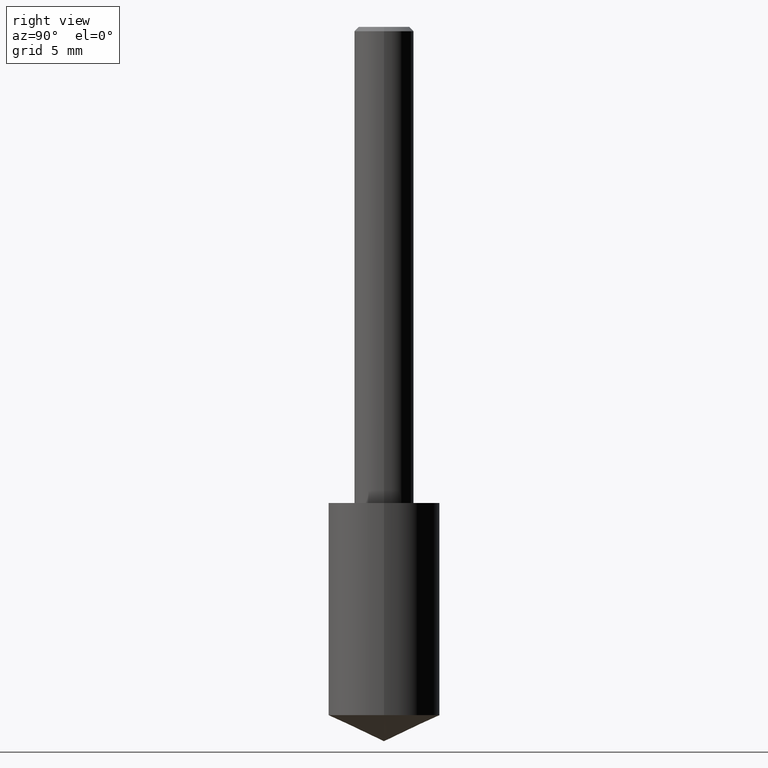
[diagram: clean part render]
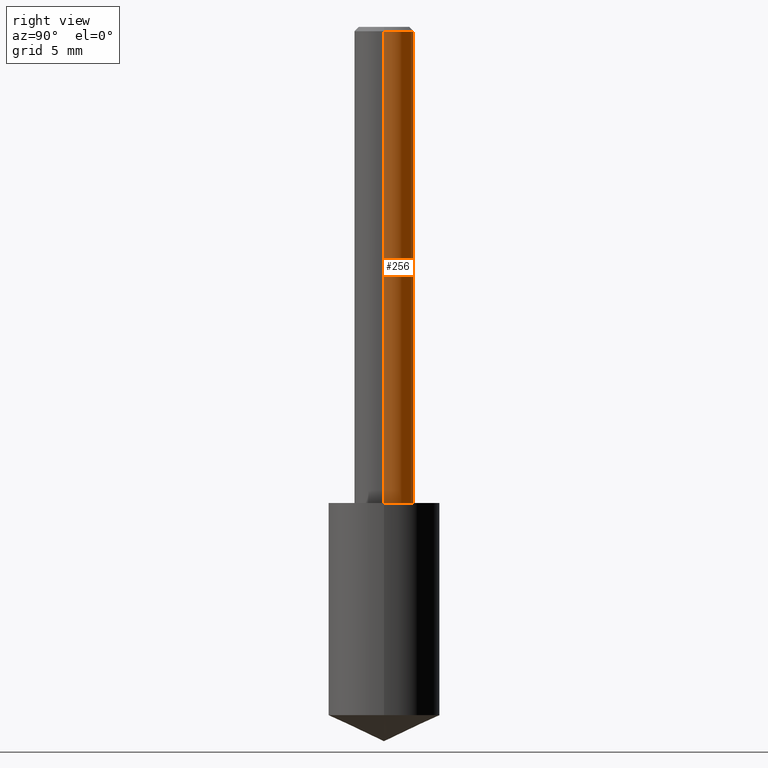
[diagram: same view with one face highlighted and labeled with its STEP entity id]
A machine part, right view. The second image highlights one B-rep face of the part: STEP entity #256.
In plain terms, the highlighted cylindrical surface (edge-blend (fillet) strip) has radius 1.5875 mm, axis along (-0, 0, 1).
Its self-contained STEP definition (entity closure, byte-faithful):
#6 = ORIENTED_EDGE ( 'NONE', *, *, #158, .T. ) ;
#11 = EDGE_CURVE ( 'NONE', #120, #41, #193, .T. ) ;
#41 = VERTEX_POINT ( 'NONE', #167 ) ;
#48 = LINE ( 'NONE', #134, #233 ) ;
#67 = LINE ( 'NONE', #77, #230 ) ;
#71 = DIRECTION ( 'NONE',  ( -2.445468806185136597E-29, 3.491481338843145583E-15, 1.000000000000000000 ) ) ;
#77 = CARTESIAN_POINT ( 'NONE',  ( -0.06250000000000006939, 4.440892098500631092E-16, -3.074334431409319267E-30 ) ) ;
#87 = CARTESIAN_POINT ( 'NONE',  ( 0.06250000000000012490, -3.927916506198539224E-15, -1.000000000000000222 ) ) ;
#95 = CARTESIAN_POINT ( 'NONE',  ( 2.445468806185137438E-29, -3.491481338843146371E-15, -1.000000000000000222 ) ) ;
#115 = DIRECTION ( 'NONE',  ( -2.445468806185136597E-29, 3.491481338843145583E-15, 1.000000000000000000 ) ) ;
#118 = CARTESIAN_POINT ( 'NONE',  ( 0.06250000000000000000, -4.691678049070464390E-16, -0.009375000000000067307 ) ) ;
#120 = VERTEX_POINT ( 'NONE', #87 ) ;
#131 = DIRECTION ( 'NONE',  ( 1.000000000000000000, -6.982962677686266711E-15, 4.876176775795935793E-29 ) ) ;
#134 = CARTESIAN_POINT ( 'NONE',  ( 0.06250000000000006939, -4.364351673553921624E-16, 3.047610484872463374E-30 ) ) ;
#145 = CIRCLE ( 'NONE', #238, 0.06250000000000000000 ) ;
#150 = AXIS2_PLACEMENT_3D ( 'NONE', #328, #115, #131 ) ;
#154 = ORIENTED_EDGE ( 'NONE', *, *, #235, .F. ) ;
#158 = EDGE_CURVE ( 'NONE', #41, #324, #67, .T. ) ;
#162 = AXIS2_PLACEMENT_3D ( 'NONE', #95, #71, #273 ) ;
#167 = CARTESIAN_POINT ( 'NONE',  ( -0.06250000000000012490, -1.318017778347335489E-15, -1.000000000000000222 ) ) ;
#174 = DIRECTION ( 'NONE',  ( -2.445468806185136877E-29, 3.491481338843145188E-15, 1.000000000000000000 ) ) ;
#193 = CIRCLE ( 'NONE', #162, 0.06250000000000012490 ) ;
#219 = CARTESIAN_POINT ( 'NONE',  ( -0.06250000000000000000, -1.318017778347336672E-15, -0.009375000000000067307 ) ) ;
#225 = CARTESIAN_POINT ( 'NONE',  ( 2.292627005798582375E-31, -3.273263755165472650E-17, -0.009375000000000067307 ) ) ;
#230 = VECTOR ( 'NONE', #318, 39.37007874015748143 ) ;
#233 = VECTOR ( 'NONE', #174, 39.37007874015748143 ) ;
#235 = EDGE_CURVE ( 'NONE', #120, #267, #48, .T. ) ;
#238 = AXIS2_PLACEMENT_3D ( 'NONE', #225, #322, #296 ) ;
#244 = ORIENTED_EDGE ( 'NONE', *, *, #11, .T. ) ;
#254 = FACE_OUTER_BOUND ( 'NONE', #299, .T. ) ;
#256 = ADVANCED_FACE ( 'NONE', ( #254 ), #301, .T. ) ;
#267 = VERTEX_POINT ( 'NONE', #118 ) ;
#272 = ORIENTED_EDGE ( 'NONE', *, *, #288, .F. ) ;
#273 = DIRECTION ( 'NONE',  ( 1.000000000000000000, -6.982962677686264344E-15, 0.000000000000000000 ) ) ;
#288 = EDGE_CURVE ( 'NONE', #267, #324, #145, .T. ) ;
#296 = DIRECTION ( 'NONE',  ( 1.000000000000000000, -6.982962677686266711E-15, 0.000000000000000000 ) ) ;
#299 = EDGE_LOOP ( 'NONE', ( #244, #6, #272, #154 ) ) ;
#301 = CYLINDRICAL_SURFACE ( 'NONE', #150, 0.06250000000000006939 ) ;
#318 = DIRECTION ( 'NONE',  ( -2.445468806185136877E-29, 3.491481338843145188E-15, 1.000000000000000000 ) ) ;
#322 = DIRECTION ( 'NONE',  ( -2.445468806185136597E-29, 3.491481338843145583E-15, 1.000000000000000000 ) ) ;
#324 = VERTEX_POINT ( 'NONE', #219 ) ;
#328 = CARTESIAN_POINT ( 'NONE',  ( 0.000000000000000000, 0.000000000000000000, 0.000000000000000000 ) ) ;